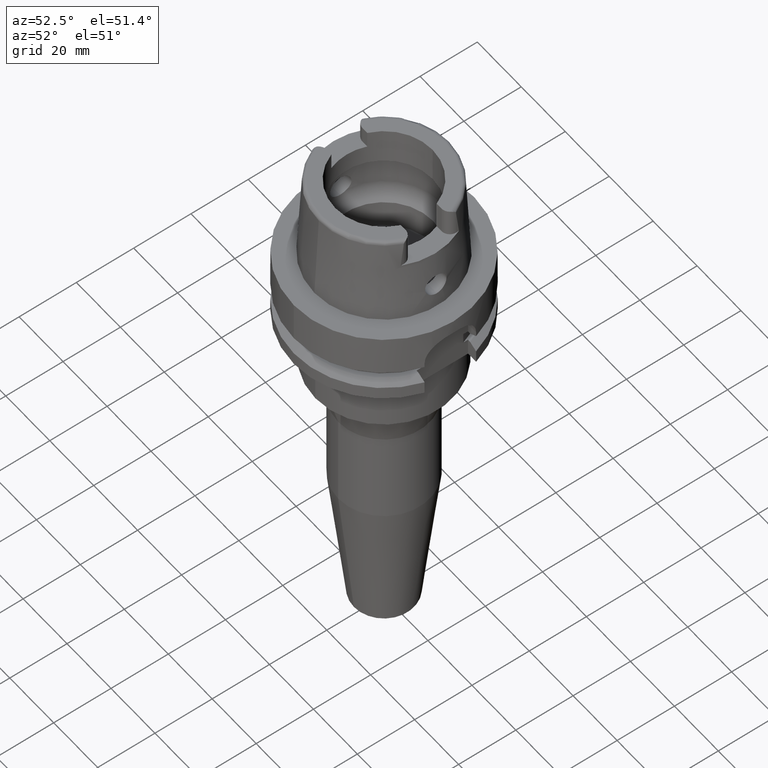
[diagram: clean part render]
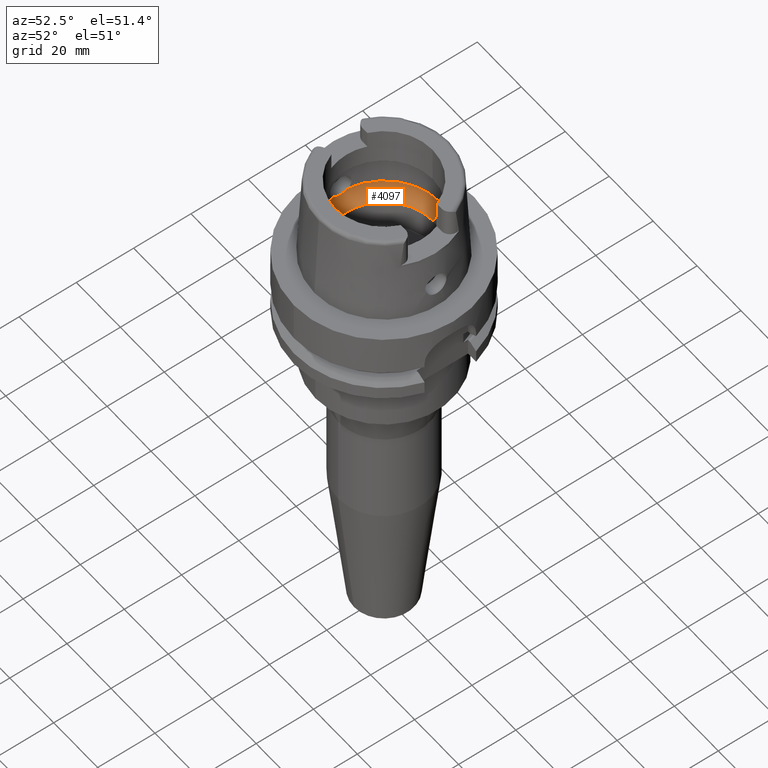
[diagram: same view with one face highlighted and labeled with its STEP entity id]
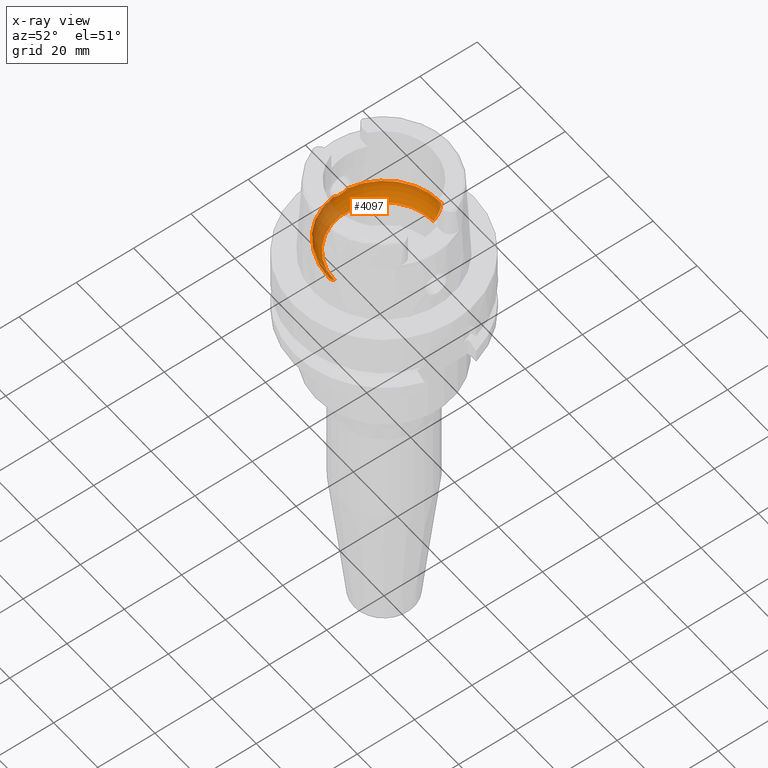
[diagram: x-ray of the same camera — body ghosted, the highlighted face saturated]
A machine part, auxiliary view. The second image highlights one B-rep face of the part: STEP entity #4097.
The next image is the same camera in x-ray: the body ghosted, the highlighted face saturated — about 22% of this face is hidden behind the body in this view.
In plain terms, the highlighted toroidal blend (fillet) surface has major radius 12 mm and minor (blend) radius 8 mm.
Its self-contained STEP definition (entity closure, byte-faithful):
#2033=CARTESIAN_POINT('',(-1.984575864666E1,-2.479085262491E0,
6.186348233825E0));
#2034=CARTESIAN_POINT('',(-1.987369637762E1,-2.255436050342E0,
5.989292765742E0));
#2035=CARTESIAN_POINT('',(-1.991331581871E1,-1.759133185383E0,
5.647057889337E0));
#2036=CARTESIAN_POINT('',(-1.994018615095E1,-9.060425565455E-1,
5.323295534197E0));
#2037=CARTESIAN_POINT('',(-1.994501428476E1,-3.022936309386E-1,5.25E0));
#2038=CARTESIAN_POINT('',(-1.994501428476E1,0.E0,5.25E0));
#2043=CARTESIAN_POINT('',(-1.994501428476E1,0.E0,5.25E0));
#2044=CARTESIAN_POINT('',(-1.994501428476E1,3.022931930043E-1,5.25E0));
#2045=CARTESIAN_POINT('',(-1.994018614423E1,9.060414364937E-1,
5.323295523152E0));
#2046=CARTESIAN_POINT('',(-1.991331601589E1,1.759129035713E0,5.647055777419E0));
#2047=CARTESIAN_POINT('',(-1.987369656375E1,2.255434560347E0,5.989291452920E0));
#2048=CARTESIAN_POINT('',(-1.984575864666E1,2.479085262491E0,6.186348233825E0));
#2053=CARTESIAN_POINT('',(0.E0,0.E0,6.186348233825E0));
#2054=DIRECTION('',(0.E0,0.E0,-1.E0));
#2055=DIRECTION('',(-9.922879323328E-1,1.239542631245E-1,0.E0));
#2056=AXIS2_PLACEMENT_3D('',#2053,#2054,#2055);
#2061=CARTESIAN_POINT('',(0.E0,0.E0,1.500000000001E-1));
#2062=DIRECTION('',(0.E0,0.E0,1.E0));
#2063=DIRECTION('',(0.E0,1.E0,0.E0));
#2064=AXIS2_PLACEMENT_3D('',#2061,#2062,#2063);
#2069=CARTESIAN_POINT('',(0.E0,-1.2E1,6.186348233825E0));
#2070=DIRECTION('',(-1.E0,0.E0,0.E0));
#2071=DIRECTION('',(0.E0,-6.5625E-1,-7.545435292281E-1));
#2072=AXIS2_PLACEMENT_3D('',#2069,#2070,#2071);
#2077=CARTESIAN_POINT('',(0.E0,0.E0,6.186348233825E0));
#2078=DIRECTION('',(0.E0,0.E0,-1.E0));
#2079=DIRECTION('',(0.E0,-1.E0,0.E0));
#2080=AXIS2_PLACEMENT_3D('',#2077,#2078,#2079);
#2103=CARTESIAN_POINT('',(-1.984575864666E1,-2.479085262491E0,
6.186348233825E0));
#2203=CARTESIAN_POINT('',(0.E0,1.2E1,6.186348233825E0));
#2204=DIRECTION('',(1.E0,0.E0,0.E0));
#2205=DIRECTION('',(0.E0,6.5625E-1,-7.545435292281E-1));
#2206=AXIS2_PLACEMENT_3D('',#2203,#2204,#2205);
#2379=VERTEX_POINT('',#2103);
#2380=CARTESIAN_POINT('',(0.E0,-2.E1,6.186348233825E0));
#2381=VERTEX_POINT('',#2380);
#2382=CARTESIAN_POINT('',(0.E0,2.E1,6.186348233825E0));
#2383=VERTEX_POINT('',#2382);
#2384=CARTESIAN_POINT('',(-1.984575864666E1,2.479085262490E0,6.186348233825E0));
#2385=VERTEX_POINT('',#2384);
#2386=CARTESIAN_POINT('',(-1.994501428476E1,0.E0,5.25E0));
#2387=VERTEX_POINT('',#2386);
#2392=CARTESIAN_POINT('',(0.E0,1.725E1,1.500000000001E-1));
#2393=VERTEX_POINT('',#2392);
#2394=CARTESIAN_POINT('',(0.E0,-1.725E1,1.500000000001E-1));
#2395=VERTEX_POINT('',#2394);
#4077=CARTESIAN_POINT('',(0.E0,0.E0,6.186348233825E0));
#4078=DIRECTION('',(0.E0,0.E0,1.E0));
#4079=DIRECTION('',(0.E0,1.E0,0.E0));
#4080=AXIS2_PLACEMENT_3D('',#4077,#4078,#4079);
#4081=TOROIDAL_SURFACE('',#4080,1.2E1,8.E0);
#4083=ORIENTED_EDGE('',*,*,#4082,.T.);
#4085=ORIENTED_EDGE('',*,*,#4084,.T.);
#4087=ORIENTED_EDGE('',*,*,#4086,.T.);
#4089=ORIENTED_EDGE('',*,*,#4088,.F.);
#4090=ORIENTED_EDGE('',*,*,#4072,.T.);
#4092=ORIENTED_EDGE('',*,*,#4091,.T.);
#4094=ORIENTED_EDGE('',*,*,#4093,.T.);
#4095=EDGE_LOOP('',(#4083,#4085,#4087,#4089,#4090,#4092,#4094));
#4096=FACE_OUTER_BOUND('',#4095,.F.);
#2039=B_SPLINE_CURVE_WITH_KNOTS('',3,(#2033,#2034,#2035,#2036,#2037,#2038),
.UNSPECIFIED.,.F.,.F.,(4,1,1,4),(0.E0,3.333333333333E-1,6.666666666667E-1,1.E0),
.UNSPECIFIED.);
#2049=B_SPLINE_CURVE_WITH_KNOTS('',3,(#2043,#2044,#2045,#2046,#2047,#2048),
.UNSPECIFIED.,.F.,.F.,(4,1,1,4),(0.E0,3.333333333333E-1,6.666666666667E-1,1.E0),
.UNSPECIFIED.);
#2057=CIRCLE('',#2056,2.E1);
#2065=CIRCLE('',#2064,1.725E1);
#2073=CIRCLE('',#2072,8.E0);
#2081=CIRCLE('',#2080,2.E1);
#2207=CIRCLE('',#2206,8.E0);
#4072=EDGE_CURVE('',#2393,#2395,#2065,.T.);
#4082=EDGE_CURVE('',#2379,#2387,#2039,.T.);
#4084=EDGE_CURVE('',#2387,#2385,#2049,.T.);
#4086=EDGE_CURVE('',#2385,#2383,#2057,.T.);
#4088=EDGE_CURVE('',#2393,#2383,#2207,.T.);
#4091=EDGE_CURVE('',#2395,#2381,#2073,.T.);
#4093=EDGE_CURVE('',#2381,#2379,#2081,.T.);
#4097=ADVANCED_FACE('',(#4096),#4081,.F.);